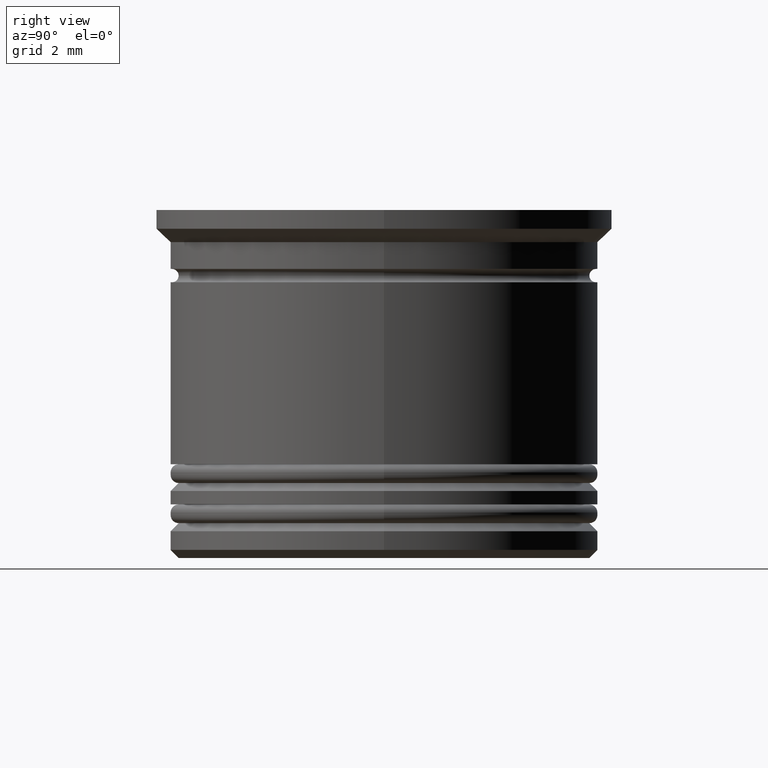
[diagram: clean part render]
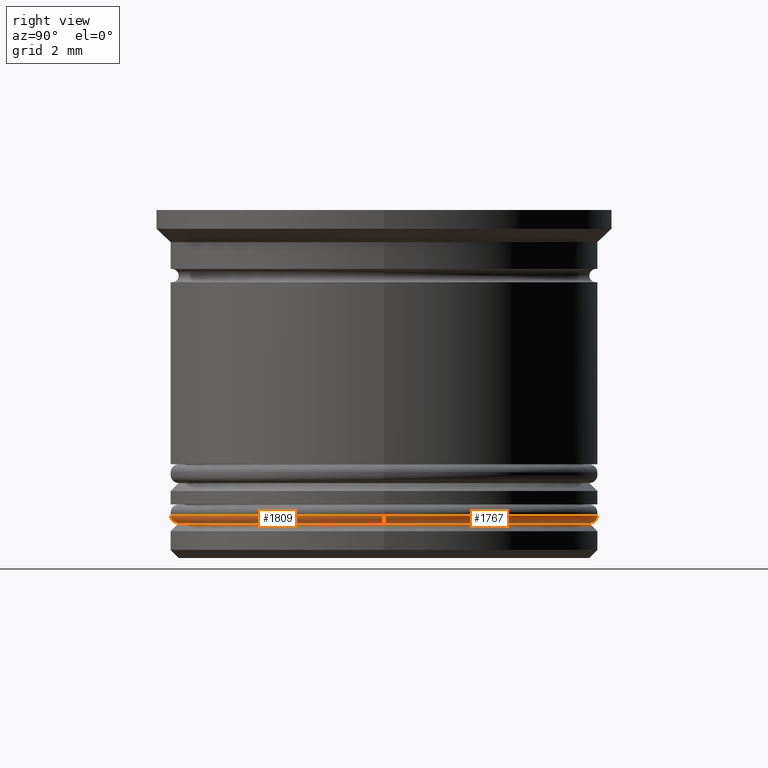
[diagram: same view with one multi-face feature highlighted, each face labeled with its STEP entity id]
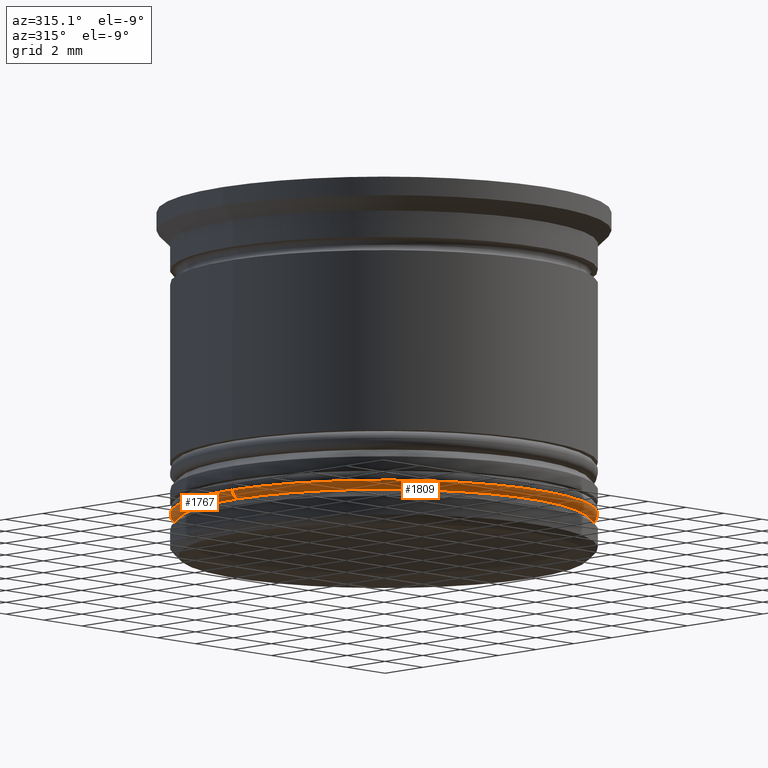
[diagram: same view with one multi-face feature highlighted, each face labeled with its STEP entity id]
A machine part, right view. The highlighted faces form ONE feature: a constant-radius fillet chain: 2 tangent blend faces with common blend radius 0.3 mm. The faces share edges in the B-rep.
A second angle (auxiliary view) of the same feature is appended — it is thin or edge-on in the first view.
Their STEP definitions:
[1] entity #1809 (Torus):
#39 = DIRECTION ( 'NONE',  ( 0.000000000000000000, -1.000000000000000000, 0.000000000000000000 ) ) ;
#57 = DIRECTION ( 'NONE',  ( 0.000000000000000000, 0.000000000000000000, 1.000000000000000000 ) ) ;
#70 = AXIS2_PLACEMENT_3D ( 'NONE', #678, #1882, #971 ) ;
#119 = VERTEX_POINT ( 'NONE', #688 ) ;
#131 = CARTESIAN_POINT ( 'NONE',  ( 7.700000000000001954, 0.000000000000000000, -11.70000000000000639 ) ) ;
#136 = AXIS2_PLACEMENT_3D ( 'NONE', #524, #39, #1449 ) ;
#141 = AXIS2_PLACEMENT_3D ( 'NONE', #782, #1558, #1249 ) ;
#149 = EDGE_CURVE ( 'NONE', #914, #1127, #1655, .T. ) ;
#209 = EDGE_LOOP ( 'NONE', ( #957, #1942, #453, #1478 ) ) ;
#223 = CARTESIAN_POINT ( 'NONE',  ( 0.000000000000000000, 0.000000000000000000, -11.40000000000000746 ) ) ;
#228 = EDGE_CURVE ( 'NONE', #119, #1127, #496, .T. ) ;
#310 = DIRECTION ( 'NONE',  ( -1.000000000000000000, 1.224646799147353207E-16, 0.000000000000000000 ) ) ;
#416 = TOROIDAL_SURFACE ( 'NONE', #1692, 7.700000000000001954, 0.2999999999999999889 ) ;
#453 = ORIENTED_EDGE ( 'NONE', *, *, #149, .T. ) ;
#486 = EDGE_CURVE ( 'NONE', #1429, #119, #1866, .T. ) ;
#496 = CIRCLE ( 'NONE', #70, 8.000000000000001776 ) ;
#521 = DIRECTION ( 'NONE',  ( 1.000000000000000000, 0.000000000000000000, 0.000000000000000000 ) ) ;
#524 = CARTESIAN_POINT ( 'NONE',  ( 7.700000000000001954, 0.000000000000000000, -11.40000000000000746 ) ) ;
#678 = CARTESIAN_POINT ( 'NONE',  ( 0.000000000000000000, 0.000000000000000000, -11.40000000000000746 ) ) ;
#688 = CARTESIAN_POINT ( 'NONE',  ( -8.000000000000001776, 9.797174393178827630E-16, -11.40000000000000746 ) ) ;
#702 = CARTESIAN_POINT ( 'NONE',  ( -7.700000000000001954, 9.613477373306725302E-16, -11.70000000000000639 ) ) ;
#761 = CARTESIAN_POINT ( 'NONE',  ( -7.700000000000001954, 9.429780353434622974E-16, -11.40000000000000746 ) ) ;
#782 = CARTESIAN_POINT ( 'NONE',  ( 0.000000000000000000, 0.000000000000000000, -11.70000000000000639 ) ) ;
#914 = VERTEX_POINT ( 'NONE', #131 ) ;
#957 = ORIENTED_EDGE ( 'NONE', *, *, #486, .F. ) ;
#971 = DIRECTION ( 'NONE',  ( 1.000000000000000000, 0.000000000000000000, 0.000000000000000000 ) ) ;
#994 = EDGE_CURVE ( 'NONE', #914, #1429, #1011, .T. ) ;
#1011 = CIRCLE ( 'NONE', #141, 7.700000000000001954 ) ;
#1127 = VERTEX_POINT ( 'NONE', #1596 ) ;
#1249 = DIRECTION ( 'NONE',  ( 1.000000000000000000, 0.000000000000000000, 0.000000000000000000 ) ) ;
#1429 = VERTEX_POINT ( 'NONE', #702 ) ;
#1449 = DIRECTION ( 'NONE',  ( 0.000000000000000000, 0.000000000000000000, -1.000000000000000000 ) ) ;
#1478 = ORIENTED_EDGE ( 'NONE', *, *, #228, .F. ) ;
#1558 = DIRECTION ( 'NONE',  ( -0.000000000000000000, -0.000000000000000000, -1.000000000000000000 ) ) ;
#1596 = CARTESIAN_POINT ( 'NONE',  ( 8.000000000000001776, 0.000000000000000000, -11.40000000000000746 ) ) ;
#1655 = CIRCLE ( 'NONE', #136, 0.2999999999999999334 ) ;
#1656 = AXIS2_PLACEMENT_3D ( 'NONE', #761, #1689, #310 ) ;
#1689 = DIRECTION ( 'NONE',  ( 1.224646799147353207E-16, 1.000000000000000000, -0.000000000000000000 ) ) ;
#1692 = AXIS2_PLACEMENT_3D ( 'NONE', #223, #57, #521 ) ;
#1809 = ADVANCED_FACE ( 'NONE', ( #1897 ), #416, .T. ) ;
#1866 = CIRCLE ( 'NONE', #1656, 0.2999999999999999334 ) ;
#1882 = DIRECTION ( 'NONE',  ( 0.000000000000000000, 0.000000000000000000, 1.000000000000000000 ) ) ;
#1897 = FACE_OUTER_BOUND ( 'NONE', #209, .T. ) ;
#1942 = ORIENTED_EDGE ( 'NONE', *, *, #994, .F. ) ;
[2] entity #1767 (Torus):
#39 = DIRECTION ( 'NONE',  ( 0.000000000000000000, -1.000000000000000000, 0.000000000000000000 ) ) ;
#73 = ORIENTED_EDGE ( 'NONE', *, *, #486, .T. ) ;
#119 = VERTEX_POINT ( 'NONE', #688 ) ;
#131 = CARTESIAN_POINT ( 'NONE',  ( 7.700000000000001954, 0.000000000000000000, -11.70000000000000639 ) ) ;
#136 = AXIS2_PLACEMENT_3D ( 'NONE', #524, #39, #1449 ) ;
#149 = EDGE_CURVE ( 'NONE', #914, #1127, #1655, .T. ) ;
#155 = FACE_OUTER_BOUND ( 'NONE', #1783, .T. ) ;
#172 = AXIS2_PLACEMENT_3D ( 'NONE', #1968, #1852, #1857 ) ;
#250 = AXIS2_PLACEMENT_3D ( 'NONE', #1584, #1455, #832 ) ;
#263 = ORIENTED_EDGE ( 'NONE', *, *, #948, .F. ) ;
#310 = DIRECTION ( 'NONE',  ( -1.000000000000000000, 1.224646799147353207E-16, 0.000000000000000000 ) ) ;
#339 = CIRCLE ( 'NONE', #1467, 7.700000000000001954 ) ;
#373 = EDGE_CURVE ( 'NONE', #1127, #119, #1428, .T. ) ;
#459 = ORIENTED_EDGE ( 'NONE', *, *, #149, .F. ) ;
#486 = EDGE_CURVE ( 'NONE', #1429, #119, #1866, .T. ) ;
#524 = CARTESIAN_POINT ( 'NONE',  ( 7.700000000000001954, 0.000000000000000000, -11.40000000000000746 ) ) ;
#688 = CARTESIAN_POINT ( 'NONE',  ( -8.000000000000001776, 9.797174393178827630E-16, -11.40000000000000746 ) ) ;
#702 = CARTESIAN_POINT ( 'NONE',  ( -7.700000000000001954, 9.613477373306725302E-16, -11.70000000000000639 ) ) ;
#761 = CARTESIAN_POINT ( 'NONE',  ( -7.700000000000001954, 9.429780353434622974E-16, -11.40000000000000746 ) ) ;
#832 = DIRECTION ( 'NONE',  ( 1.000000000000000000, 0.000000000000000000, 0.000000000000000000 ) ) ;
#914 = VERTEX_POINT ( 'NONE', #131 ) ;
#948 = EDGE_CURVE ( 'NONE', #1429, #914, #339, .T. ) ;
#1072 = DIRECTION ( 'NONE',  ( 1.000000000000000000, 0.000000000000000000, 0.000000000000000000 ) ) ;
#1127 = VERTEX_POINT ( 'NONE', #1596 ) ;
#1251 = TOROIDAL_SURFACE ( 'NONE', #250, 7.700000000000001954, 0.2999999999999999889 ) ;
#1428 = CIRCLE ( 'NONE', #172, 8.000000000000001776 ) ;
#1429 = VERTEX_POINT ( 'NONE', #702 ) ;
#1449 = DIRECTION ( 'NONE',  ( 0.000000000000000000, 0.000000000000000000, -1.000000000000000000 ) ) ;
#1455 = DIRECTION ( 'NONE',  ( 0.000000000000000000, 0.000000000000000000, 1.000000000000000000 ) ) ;
#1467 = AXIS2_PLACEMENT_3D ( 'NONE', #1668, #1833, #1072 ) ;
#1584 = CARTESIAN_POINT ( 'NONE',  ( 0.000000000000000000, 0.000000000000000000, -11.40000000000000746 ) ) ;
#1596 = CARTESIAN_POINT ( 'NONE',  ( 8.000000000000001776, 0.000000000000000000, -11.40000000000000746 ) ) ;
#1655 = CIRCLE ( 'NONE', #136, 0.2999999999999999334 ) ;
#1656 = AXIS2_PLACEMENT_3D ( 'NONE', #761, #1689, #310 ) ;
#1668 = CARTESIAN_POINT ( 'NONE',  ( 0.000000000000000000, 0.000000000000000000, -11.70000000000000639 ) ) ;
#1689 = DIRECTION ( 'NONE',  ( 1.224646799147353207E-16, 1.000000000000000000, -0.000000000000000000 ) ) ;
#1767 = ADVANCED_FACE ( 'NONE', ( #155 ), #1251, .T. ) ;
#1783 = EDGE_LOOP ( 'NONE', ( #263, #73, #1805, #459 ) ) ;
#1805 = ORIENTED_EDGE ( 'NONE', *, *, #373, .F. ) ;
#1833 = DIRECTION ( 'NONE',  ( -0.000000000000000000, -0.000000000000000000, -1.000000000000000000 ) ) ;
#1852 = DIRECTION ( 'NONE',  ( 0.000000000000000000, 0.000000000000000000, 1.000000000000000000 ) ) ;
#1857 = DIRECTION ( 'NONE',  ( 1.000000000000000000, 0.000000000000000000, 0.000000000000000000 ) ) ;
#1866 = CIRCLE ( 'NONE', #1656, 0.2999999999999999334 ) ;
#1968 = CARTESIAN_POINT ( 'NONE',  ( 0.000000000000000000, 0.000000000000000000, -11.40000000000000746 ) ) ;